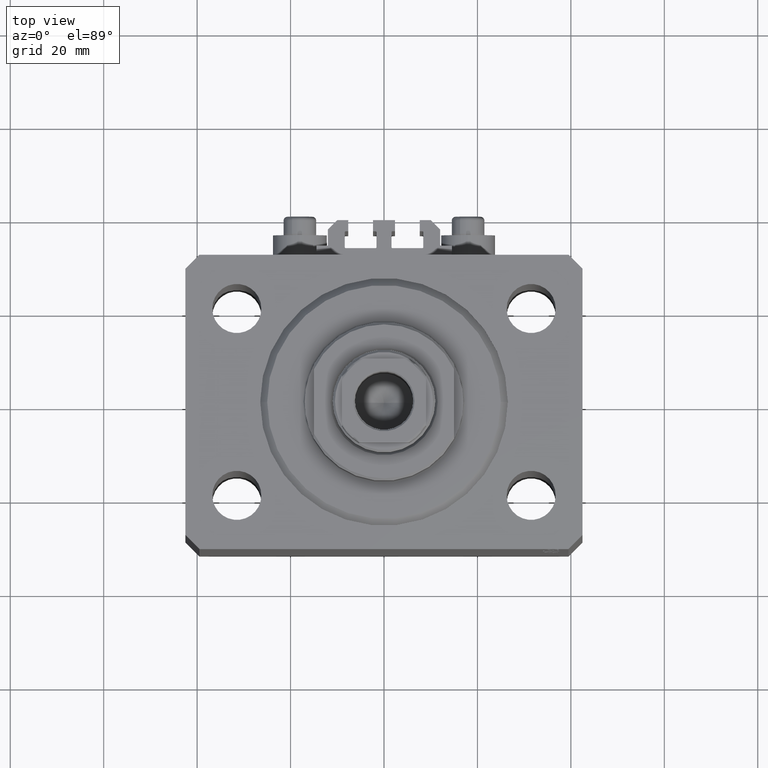
[diagram: clean part render]
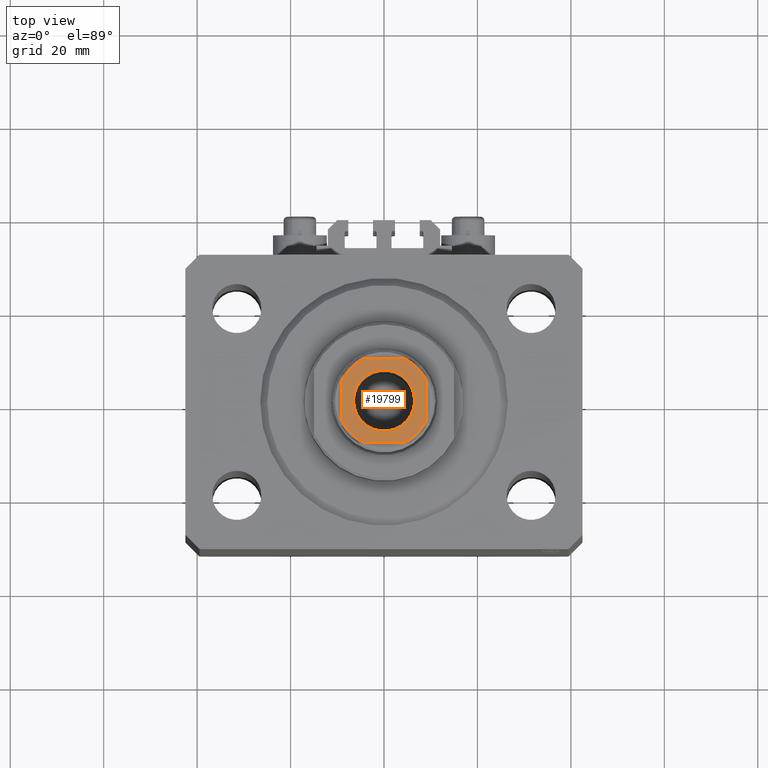
[diagram: same view with one face highlighted and labeled with its STEP entity id]
A machine part, top view. The second image highlights one B-rep face of the part: STEP entity #19799.
In plain terms, the highlighted planar face has unit normal (0, 0, 1).
Its self-contained STEP definition (entity closure, byte-faithful):
#148 = AXIS2_PLACEMENT_3D ( 'NONE', #26060, #22941, #26537 ) ;
#882 = CARTESIAN_POINT ( 'NONE',  ( 9.000000000000000000, 4.358898943540675752, 98.60000000000000853 ) ) ;
#1086 = EDGE_LOOP ( 'NONE', ( #44544, #41345 ) ) ;
#2020 = DIRECTION ( 'NONE',  ( 0.000000000000000000, -0.000000000000000000, -1.000000000000000000 ) ) ;
#2145 = DIRECTION ( 'NONE',  ( 1.000000000000000000, 0.000000000000000000, 0.000000000000000000 ) ) ;
#3440 = AXIS2_PLACEMENT_3D ( 'NONE', #9610, #16290, #12708 ) ;
#3774 = CARTESIAN_POINT ( 'NONE',  ( -8.999999999999998224, -9.000000000000001776, 98.60000000000000853 ) ) ;
#4266 = LINE ( 'NONE', #22872, #12474 ) ;
#4281 = AXIS2_PLACEMENT_3D ( 'NONE', #34724, #2020, #30908 ) ;
#4752 = CARTESIAN_POINT ( 'NONE',  ( 0.000000000000000000, 0.000000000000000000, 98.60000000000000853 ) ) ;
#5080 = ORIENTED_EDGE ( 'NONE', *, *, #39210, .T. ) ;
#5666 = ORIENTED_EDGE ( 'NONE', *, *, #42610, .T. ) ;
#5879 = CARTESIAN_POINT ( 'NONE',  ( -9.000000000000000000, 8.999999999999998224, 98.60000000000000853 ) ) ;
#7676 = EDGE_CURVE ( 'NONE', #12574, #16559, #31679, .T. ) ;
#8876 = CARTESIAN_POINT ( 'NONE',  ( 9.000000000000001776, -4.358898943540675752, 98.60000000000000853 ) ) ;
#8973 = CARTESIAN_POINT ( 'NONE',  ( -4.358898943540678417, 8.999999999999998224, 98.60000000000000853 ) ) ;
#9610 = CARTESIAN_POINT ( 'NONE',  ( 0.000000000000000000, 0.000000000000000000, 98.60000000000000853 ) ) ;
#10679 = EDGE_CURVE ( 'NONE', #22362, #12574, #12036, .T. ) ;
#11840 = CARTESIAN_POINT ( 'NONE',  ( 4.358898943540671311, -9.000000000000001776, 98.60000000000000853 ) ) ;
#11842 = CARTESIAN_POINT ( 'NONE',  ( -9.000000000000000000, 4.358898943540674864, 98.60000000000000853 ) ) ;
#12036 = CIRCLE ( 'NONE', #34177, 10.00000000000000000 ) ;
#12474 = VECTOR ( 'NONE', #44848, 1000.000000000000000 ) ;
#12481 = CARTESIAN_POINT ( 'NONE',  ( 6.550000000000013145, 0.000000000000000000, 98.60000000000000853 ) ) ;
#12574 = VERTEX_POINT ( 'NONE', #35092 ) ;
#12708 = DIRECTION ( 'NONE',  ( 1.000000000000000000, 0.000000000000000000, 0.000000000000000000 ) ) ;
#15535 = FACE_BOUND ( 'NONE', #1086, .T. ) ;
#15679 = CIRCLE ( 'NONE', #38560, 6.550000000000013145 ) ;
#15972 = DIRECTION ( 'NONE',  ( -0.000000000000000000, 0.000000000000000000, 1.000000000000000000 ) ) ;
#16290 = DIRECTION ( 'NONE',  ( -0.000000000000000000, 0.000000000000000000, 1.000000000000000000 ) ) ;
#16559 = VERTEX_POINT ( 'NONE', #8973 ) ;
#17037 = AXIS2_PLACEMENT_3D ( 'NONE', #34856, #20517, #2145 ) ;
#17065 = VECTOR ( 'NONE', #47241, 1000.000000000000000 ) ;
#18910 = DIRECTION ( 'NONE',  ( -0.000000000000000000, 0.000000000000000000, 1.000000000000000000 ) ) ;
#18982 = EDGE_CURVE ( 'NONE', #28189, #42009, #31751, .T. ) ;
#19799 = ADVANCED_FACE ( 'NONE', ( #15535, #43980 ), #30119, .T. ) ;
#19899 = VECTOR ( 'NONE', #23863, 1000.000000000000000 ) ;
#20517 = DIRECTION ( 'NONE',  ( -0.000000000000000000, 0.000000000000000000, 1.000000000000000000 ) ) ;
#21227 = LINE ( 'NONE', #3774, #17065 ) ;
#21813 = ORIENTED_EDGE ( 'NONE', *, *, #29986, .T. ) ;
#21929 = DIRECTION ( 'NONE',  ( 0.000000000000000000, -0.000000000000000000, -1.000000000000000000 ) ) ;
#22302 = VERTEX_POINT ( 'NONE', #11840 ) ;
#22362 = VERTEX_POINT ( 'NONE', #882 ) ;
#22872 = CARTESIAN_POINT ( 'NONE',  ( 9.000000000000000000, 8.999999999999998224, 98.60000000000000853 ) ) ;
#22941 = DIRECTION ( 'NONE',  ( -0.000000000000000000, 0.000000000000000000, 1.000000000000000000 ) ) ;
#23863 = DIRECTION ( 'NONE',  ( 9.637352644315595243E-17, -1.000000000000000000, 0.000000000000000000 ) ) ;
#24269 = DIRECTION ( 'NONE',  ( -1.000000000000000000, -0.000000000000000000, -0.000000000000000000 ) ) ;
#24981 = EDGE_CURVE ( 'NONE', #16559, #28189, #46759, .T. ) ;
#26060 = CARTESIAN_POINT ( 'NONE',  ( 0.000000000000000000, 0.000000000000000000, 98.60000000000000853 ) ) ;
#26537 = DIRECTION ( 'NONE',  ( 1.000000000000000000, 0.000000000000000000, 0.000000000000000000 ) ) ;
#26731 = DIRECTION ( 'NONE',  ( 1.000000000000000000, 0.000000000000000000, 0.000000000000000000 ) ) ;
#28189 = VERTEX_POINT ( 'NONE', #11842 ) ;
#28407 = ORIENTED_EDGE ( 'NONE', *, *, #7676, .T. ) ;
#29000 = VERTEX_POINT ( 'NONE', #8876 ) ;
#29986 = EDGE_CURVE ( 'NONE', #41981, #22302, #21227, .T. ) ;
#30119 = PLANE ( 'NONE',  #148 ) ;
#30138 = DIRECTION ( 'NONE',  ( 1.000000000000000000, 0.000000000000000000, 0.000000000000000000 ) ) ;
#30150 = ORIENTED_EDGE ( 'NONE', *, *, #37379, .T. ) ;
#30211 = ORIENTED_EDGE ( 'NONE', *, *, #10679, .T. ) ;
#30371 = CARTESIAN_POINT ( 'NONE',  ( 0.000000000000000000, 0.000000000000000000, 98.60000000000000853 ) ) ;
#30908 = DIRECTION ( 'NONE',  ( 1.000000000000000000, 0.000000000000000000, 0.000000000000000000 ) ) ;
#31252 = CARTESIAN_POINT ( 'NONE',  ( -4.358898943540671311, -9.000000000000001776, 98.60000000000000853 ) ) ;
#31679 = LINE ( 'NONE', #5879, #47035 ) ;
#31751 = LINE ( 'NONE', #46530, #19899 ) ;
#33233 = CARTESIAN_POINT ( 'NONE',  ( -9.000000000000000000, -4.358898943540675752, 98.60000000000000853 ) ) ;
#34177 = AXIS2_PLACEMENT_3D ( 'NONE', #4752, #15972, #26731 ) ;
#34724 = CARTESIAN_POINT ( 'NONE',  ( 0.000000000000000000, 0.000000000000000000, 98.60000000000000853 ) ) ;
#34856 = CARTESIAN_POINT ( 'NONE',  ( 0.000000000000000000, 0.000000000000000000, 98.60000000000000853 ) ) ;
#35092 = CARTESIAN_POINT ( 'NONE',  ( 4.358898943540677529, 8.999999999999998224, 98.60000000000000853 ) ) ;
#35212 = EDGE_LOOP ( 'NONE', ( #39164, #5080, #21813, #5666, #30150, #30211, #28407, #39872 ) ) ;
#35996 = VERTEX_POINT ( 'NONE', #46191 ) ;
#36505 = DIRECTION ( 'NONE',  ( 1.000000000000000000, 0.000000000000000000, 0.000000000000000000 ) ) ;
#37082 = AXIS2_PLACEMENT_3D ( 'NONE', #30371, #18910, #30138 ) ;
#37379 = EDGE_CURVE ( 'NONE', #29000, #22362, #4266, .T. ) ;
#38560 = AXIS2_PLACEMENT_3D ( 'NONE', #44780, #21929, #36505 ) ;
#39164 = ORIENTED_EDGE ( 'NONE', *, *, #18982, .T. ) ;
#39210 = EDGE_CURVE ( 'NONE', #42009, #41981, #44591, .T. ) ;
#39872 = ORIENTED_EDGE ( 'NONE', *, *, #24981, .T. ) ;
#40890 = CIRCLE ( 'NONE', #37082, 10.00000000000000000 ) ;
#41345 = ORIENTED_EDGE ( 'NONE', *, *, #43333, .T. ) ;
#41715 = VERTEX_POINT ( 'NONE', #12481 ) ;
#41981 = VERTEX_POINT ( 'NONE', #31252 ) ;
#42009 = VERTEX_POINT ( 'NONE', #33233 ) ;
#42422 = CIRCLE ( 'NONE', #4281, 6.550000000000013145 ) ;
#42610 = EDGE_CURVE ( 'NONE', #22302, #29000, #40890, .T. ) ;
#43333 = EDGE_CURVE ( 'NONE', #35996, #41715, #42422, .T. ) ;
#43980 = FACE_OUTER_BOUND ( 'NONE', #35212, .T. ) ;
#44544 = ORIENTED_EDGE ( 'NONE', *, *, #45185, .T. ) ;
#44591 = CIRCLE ( 'NONE', #3440, 10.00000000000000000 ) ;
#44780 = CARTESIAN_POINT ( 'NONE',  ( 0.000000000000000000, 0.000000000000000000, 98.60000000000000853 ) ) ;
#44848 = DIRECTION ( 'NONE',  ( -9.637352644315595243E-17, 1.000000000000000000, -0.000000000000000000 ) ) ;
#45185 = EDGE_CURVE ( 'NONE', #41715, #35996, #15679, .T. ) ;
#46191 = CARTESIAN_POINT ( 'NONE',  ( -6.550000000000013145, 8.021436534415179025E-16, 98.60000000000000853 ) ) ;
#46530 = CARTESIAN_POINT ( 'NONE',  ( -9.000000000000000000, 8.999999999999998224, 98.60000000000000853 ) ) ;
#46759 = CIRCLE ( 'NONE', #17037, 10.00000000000000000 ) ;
#47035 = VECTOR ( 'NONE', #24269, 1000.000000000000000 ) ;
#47241 = DIRECTION ( 'NONE',  ( 1.000000000000000000, 0.000000000000000000, 0.000000000000000000 ) ) ;